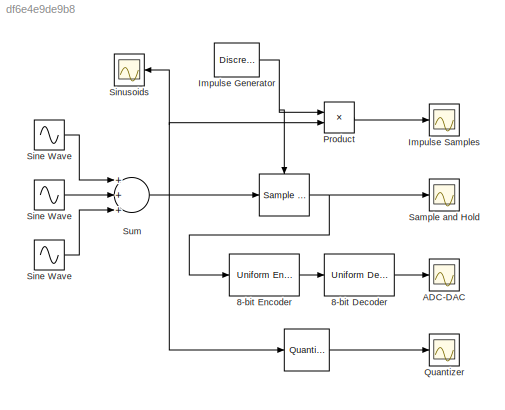
MODEL slx_df6e4e9de9b8
KIND model
BLOCK [Quantizer]  
  LinearizeAsGain = off
  QuantizationInterval = 0.01
BLOCK [Reference]      REF=dspsigops/Sample
and Hold
  Ports = [1, 1, 0, 1]
  SourceBlock = dspsigops/Sample\nand Hold
  SourceType = Sample and Hold
  initCond = 0
  latchinput = off
  trig = Rising edge
BLOCK [Sin]  Sine Wave 
  Amplitude = 0.2
  Frequency = 5000*pi
  Ports = [0, 1]
  SampleTime = 1.25e-6
BLOCK [Reference] 8-bit Decoder  REF=dspquant2/Uniform
Decoder
  Ports = [1, 1]
  SourceBlock = dspquant2/Uniform\nDecoder
  SourceType = Uniform Decoder
  bits = 8
  otype = Double
  overflowMode = Saturate
  peak = 1.28
BLOCK [Reference] 8-bit Encoder  REF=dspquant2/Uniform
Encoder
  Ports = [1, 1]
  SourceBlock = dspquant2/Uniform\nEncoder
  SourceType = Uniform Encoder
  bits = 8
  otype = Signed integer
  peak = 1.28
BLOCK [Scope] ADC-DAC
  DataFormat = StructureWithTime
  Floating = off
  NumInputPorts = 1
  Ports = [1]
  SampleTime = 0
  SaveName = ScopeData4
  ShowLegends = off
  YMax = 1.5
  YMin = -1.5
BLOCK [DiscretePulseGenerator] Impulse Generator
  Period = 100
  Ports = [0, 1]
  SampleTime = 1.25e-6
BLOCK [Scope] Impulse Samples
  DataFormat = StructureWithTime
  Floating = off
  NumInputPorts = 1
  Ports = [1]
  SampleTime = 0
  SaveName = ScopeData1
  ShowLegends = off
  YMax = 1.5
  YMin = -1.5
BLOCK [Product] Product
  InputSameDT = off
  OutDataTypeStr = Inherit: Inherit via internal rule
  Ports = [2, 1]
  SaturateOnIntegerOverflow = off
BLOCK [Scope] Quantizer
  DataFormat = StructureWithTime
  Floating = off
  NumInputPorts = 1
  Ports = [1]
  SampleTime = 0
  SaveName = ScopeData2
  ShowLegends = off
  YMax = 1.5
  YMin = -1.5
BLOCK [Scope] Sample and Hold 
  DataFormat = StructureWithTime
  Floating = off
  NumInputPorts = 1
  Ports = [1]
  SampleTime = 0
  SaveName = ScopeData3
  ShowLegends = off
  YMax = 1.5
  YMin = -1.5
BLOCK [Sin] Sine Wave
  Frequency = 1000*pi
  Ports = [0, 1]
  SampleTime = 1.25e-6
BLOCK [Sin] Sine Wave 
  Amplitude = 0.5
  Frequency = 3000*pi
  Ports = [0, 1]
  SampleTime = 1.25e-6
BLOCK [Scope] Sinusoids
  DataFormat = StructureWithTime
  Floating = off
  NumInputPorts = 1
  Ports = [1]
  SampleTime = 0
  ShowLegends = off
  YMax = 1.5
  YMin = -1.5
BLOCK [Sum] Sum
  InputSameDT = off
  Inputs = +++
  OutDataTypeStr = Inherit: Inherit via internal rule
  Ports = [3, 1]
  SaturateOnIntegerOverflow = off
NET    :1 -> 8-bit Encoder:1, Sample and Hold :1
LINE  :1 -> Quantizer:1
LINE  Sine Wave :1 -> Sum:3
LINE 8-bit Decoder:1 -> ADC-DAC:1
LINE 8-bit Encoder:1 -> 8-bit Decoder:1
NET Impulse Generator:1 ->    :trigger, Product:1
LINE Product:1 -> Impulse Samples:1
LINE Sine Wave :1 -> Sum:2
LINE Sine Wave:1 -> Sum:1
NET Sum:1 ->    :1,  :1, Product:2, Sinusoids:1
note: NET lines group one-source signal fan-out (src -> all destinations, sorted); 1:1 wires keep LINE
